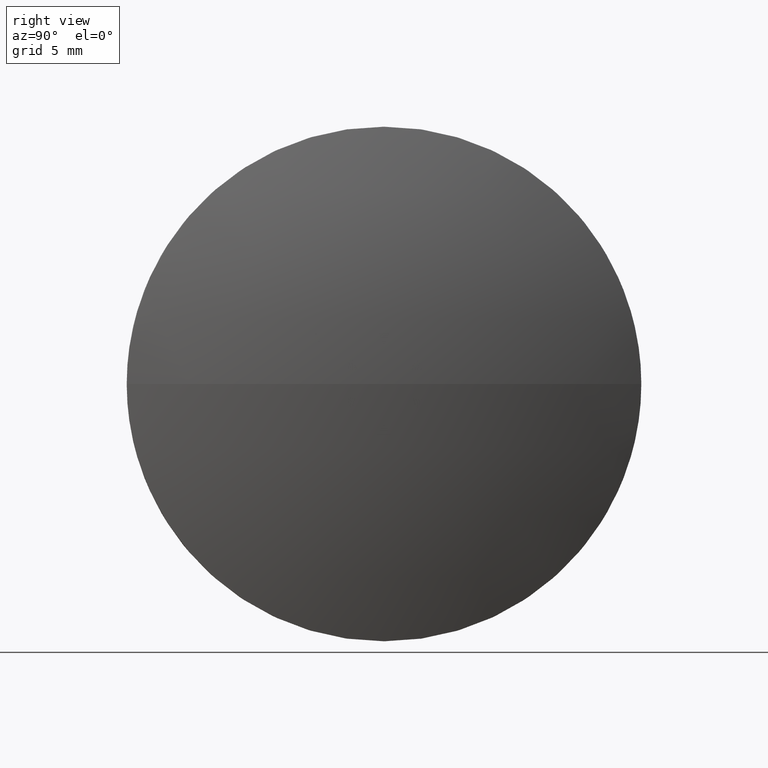
[diagram: clean part render]
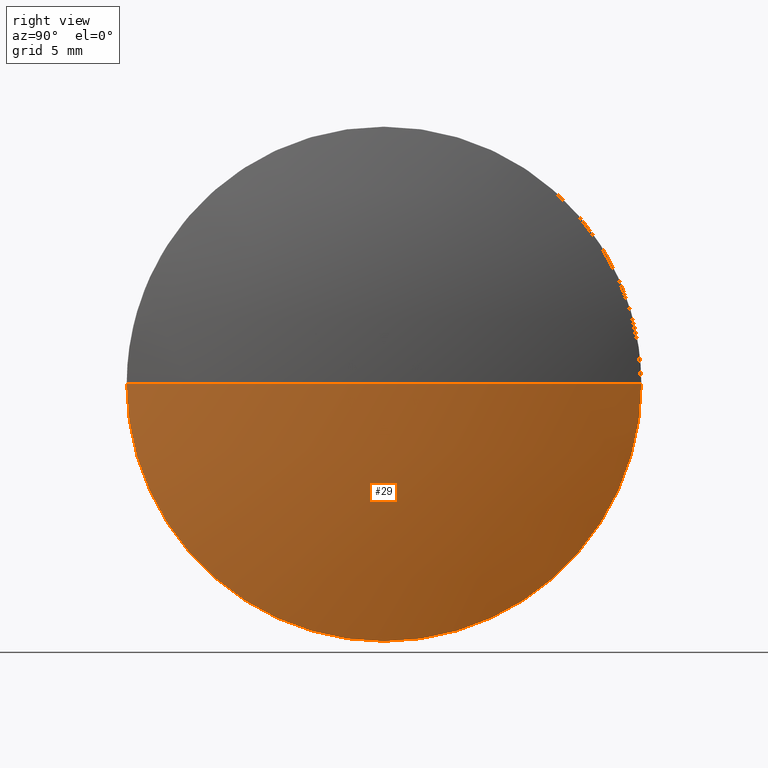
[diagram: same view with one face highlighted and labeled with its STEP entity id]
A machine part, right view. The second image highlights one B-rep face of the part: STEP entity #29.
In plain terms, the highlighted spherical surface has radius 64.4831 mm.
Its self-contained STEP definition (entity closure, byte-faithful):
#5 = EDGE_LOOP ( 'NONE', ( #151, #183, #104, #136 ) ) ;
#13 = FACE_OUTER_BOUND ( 'NONE', #5, .T. ) ;
#16 = AXIS2_PLACEMENT_3D ( 'NONE', #123, #141, #66 ) ;
#18 = EDGE_CURVE ( 'NONE', #38, #173, #52, .T. ) ;
#21 = CARTESIAN_POINT ( 'NONE',  ( 572.4530136737812400, 216.2326757458980900, 0.0000000000000000000 ) ) ;
#25 = DIRECTION ( 'NONE',  ( 1.000000000000000000, 0.0000000000000000000, 0.0000000000000000000 ) ) ;
#28 = VERTEX_POINT ( 'NONE', #124 ) ;
#29 = ADVANCED_FACE ( 'NONE', ( #13 ), #91, .T. ) ;
#32 = CIRCLE ( 'NONE', #126, 64.48308176100611900 ) ;
#38 = VERTEX_POINT ( 'NONE', #97 ) ;
#40 = CIRCLE ( 'NONE', #77, 64.48308176100614700 ) ;
#42 = CARTESIAN_POINT ( 'NONE',  ( 572.4530136737812400, 216.2326757458980900, 0.0000000000000000000 ) ) ;
#48 = EDGE_CURVE ( 'NONE', #28, #38, #40, .T. ) ;
#52 = CIRCLE ( 'NONE', #99, 19.99999999999998900 ) ;
#65 = EDGE_CURVE ( 'NONE', #28, #84, #32, .T. ) ;
#66 = DIRECTION ( 'NONE',  ( 0.0000000000000000000, 1.000000000000000000, 0.0000000000000000000 ) ) ;
#70 = CARTESIAN_POINT ( 'NONE',  ( 572.4530136737812400, 196.2326757458979500, -2.449293598294707300E-015 ) ) ;
#71 = CARTESIAN_POINT ( 'NONE',  ( 511.1499319127751200, 216.2326757458979800, 0.0000000000000000000 ) ) ;
#73 = DIRECTION ( 'NONE',  ( -0.0000000000000000000, 0.0000000000000000000, 1.000000000000000000 ) ) ;
#77 = AXIS2_PLACEMENT_3D ( 'NONE', #71, #73, #25 ) ;
#84 = VERTEX_POINT ( 'NONE', #70 ) ;
#85 = DIRECTION ( 'NONE',  ( 0.0000000000000000000, 0.0000000000000000000, 1.000000000000000000 ) ) ;
#91 = SPHERICAL_SURFACE ( 'NONE', #16, 64.48308176100613300 ) ;
#97 = CARTESIAN_POINT ( 'NONE',  ( 572.4530136737812400, 236.2326757458980900, 0.0000000000000000000 ) ) ;
#99 = AXIS2_PLACEMENT_3D ( 'NONE', #21, #180, #85 ) ;
#104 = ORIENTED_EDGE ( 'NONE', *, *, #138, .F. ) ;
#113 = DIRECTION ( 'NONE',  ( 0.0000000000000000000, 0.0000000000000000000, 1.000000000000000000 ) ) ;
#123 = CARTESIAN_POINT ( 'NONE',  ( 511.1499319127751200, 216.2326757458979800, 0.0000000000000000000 ) ) ;
#124 = CARTESIAN_POINT ( 'NONE',  ( 575.6330136737813100, 216.2326757458979800, 0.0000000000000000000 ) ) ;
#126 = AXIS2_PLACEMENT_3D ( 'NONE', #129, #156, #159 ) ;
#127 = CIRCLE ( 'NONE', #172, 19.99999999999998900 ) ;
#129 = CARTESIAN_POINT ( 'NONE',  ( 511.1499319127751200, 216.2326757458979800, 0.0000000000000000000 ) ) ;
#136 = ORIENTED_EDGE ( 'NONE', *, *, #18, .F. ) ;
#138 = EDGE_CURVE ( 'NONE', #173, #84, #127, .T. ) ;
#141 = DIRECTION ( 'NONE',  ( -0.0000000000000000000, 0.0000000000000000000, -1.000000000000000000 ) ) ;
#151 = ORIENTED_EDGE ( 'NONE', *, *, #48, .F. ) ;
#156 = DIRECTION ( 'NONE',  ( 0.0000000000000000000, 1.224646799147353200E-016, -1.000000000000000000 ) ) ;
#158 = CARTESIAN_POINT ( 'NONE',  ( 572.4530136737812400, 216.2326757458980900, -19.99999999999998900 ) ) ;
#159 = DIRECTION ( 'NONE',  ( 0.0000000000000000000, 1.000000000000000000, 1.224646799147353200E-016 ) ) ;
#172 = AXIS2_PLACEMENT_3D ( 'NONE', #42, #184, #113 ) ;
#173 = VERTEX_POINT ( 'NONE', #158 ) ;
#180 = DIRECTION ( 'NONE',  ( -1.000000000000000000, -0.0000000000000000000, -0.0000000000000000000 ) ) ;
#183 = ORIENTED_EDGE ( 'NONE', *, *, #65, .T. ) ;
#184 = DIRECTION ( 'NONE',  ( -1.000000000000000000, -0.0000000000000000000, -0.0000000000000000000 ) ) ;